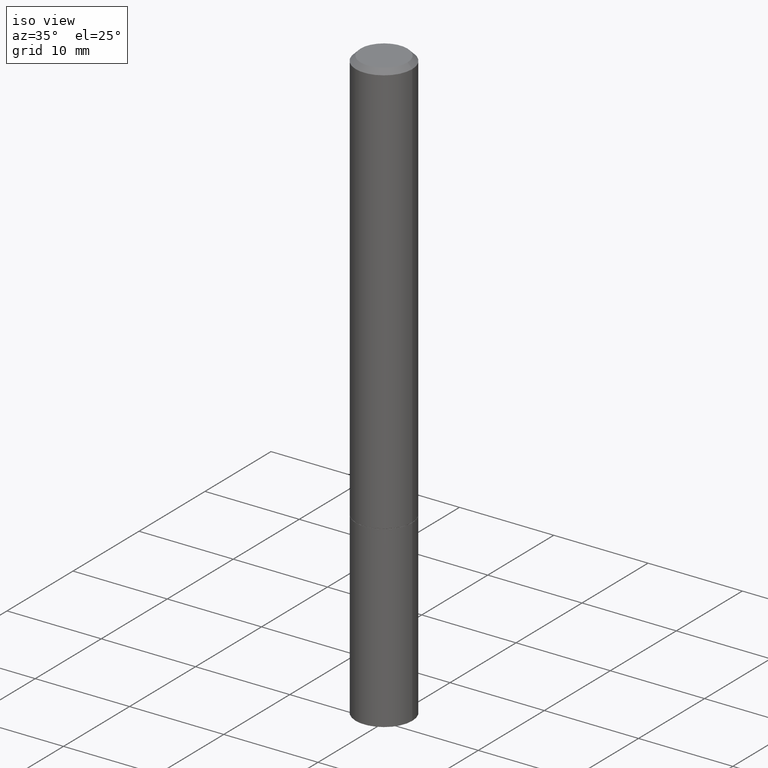
[diagram: clean part render]
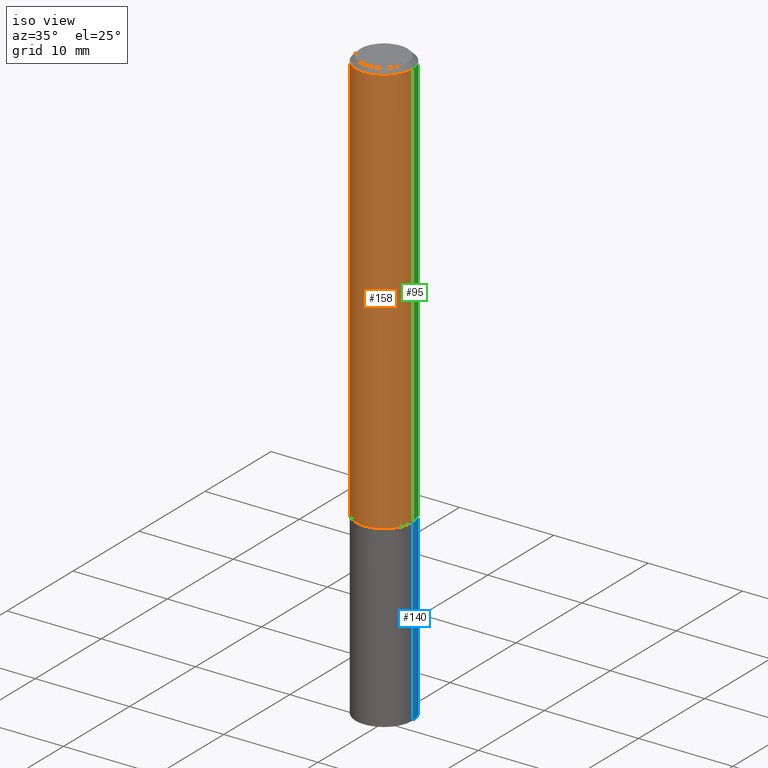
[diagram: same view with three faces highlighted in distinct colors, each labeled with its STEP entity id]
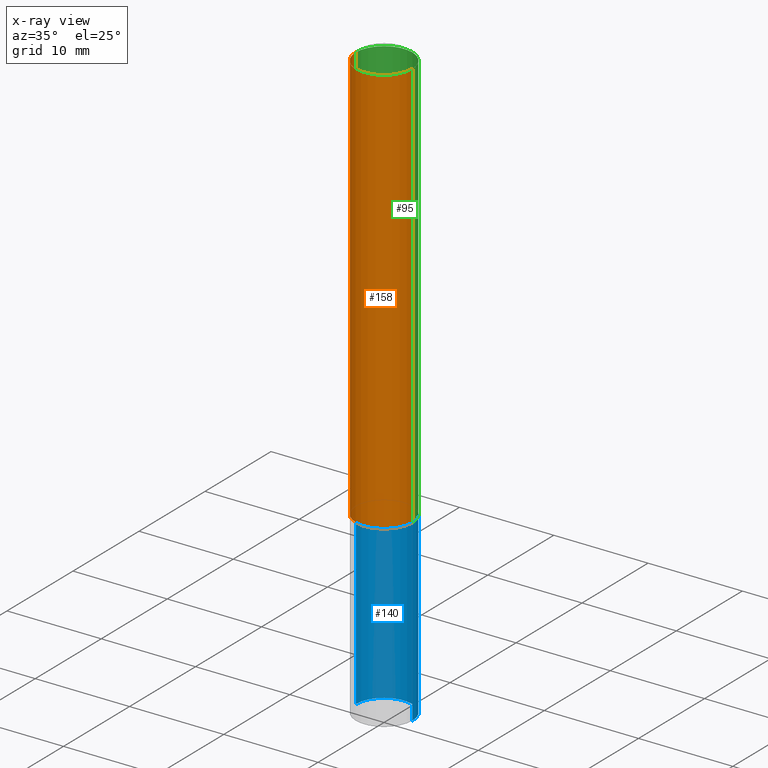
[diagram: x-ray of the same camera — body ghosted, the three highlighted faces saturated]
A machine part, iso view with three faces highlighted in distinct colors.
The next image is the same camera in x-ray (body ghosted, the three faces saturated) — at least one of them is partly hidden behind the body in this view.
Their STEP definitions:

[orange] entity #158 — the highlighted cylindrical surface (edge-blend (fillet) strip) has radius 2.9997 mm, axis along (-0, 0, 1).
#9 = CARTESIAN_POINT ( 'NONE',  ( 4.890937612370304688E-31, -6.982962677686337215E-17, -0.02000000000000013226 ) ) ;
#15 = CARTESIAN_POINT ( 'NONE',  ( -0.1181000000000000383, -2.218164663425320121E-15, -1.731300000000000283 ) ) ;
#22 = VERTEX_POINT ( 'NONE', #243 ) ;
#26 = EDGE_CURVE ( 'NONE', #22, #196, #123, .T. ) ;
#35 = DIRECTION ( 'NONE',  ( -2.445468806185136877E-29, 3.491481338843145188E-15, 1.000000000000000000 ) ) ;
#48 = DIRECTION ( 'NONE',  ( 1.000000000000000000, -6.982962677686262766E-15, 0.000000000000000000 ) ) ;
#60 = DIRECTION ( 'NONE',  ( 1.000000000000000000, -6.982962677686266711E-15, 0.000000000000000000 ) ) ;
#73 = VERTEX_POINT ( 'NONE', #319 ) ;
#108 = CARTESIAN_POINT ( 'NONE',  ( 0.000000000000000000, 0.000000000000000000, 0.000000000000000000 ) ) ;
#111 = EDGE_LOOP ( 'NONE', ( #343, #250, #144, #170 ) ) ;
#123 = CIRCLE ( 'NONE', #225, 0.1180999999999998301 ) ;
#137 = EDGE_CURVE ( 'NONE', #204, #73, #235, .T. ) ;
#142 = VECTOR ( 'NONE', #35, 39.37007874015748143 ) ;
#144 = ORIENTED_EDGE ( 'NONE', *, *, #248, .T. ) ;
#158 = ADVANCED_FACE ( 'NONE', ( #283 ), #276, .T. ) ;
#170 = ORIENTED_EDGE ( 'NONE', *, *, #26, .F. ) ;
#196 = VERTEX_POINT ( 'NONE', #335 ) ;
#204 = VERTEX_POINT ( 'NONE', #15 ) ;
#205 = DIRECTION ( 'NONE',  ( -2.445468806185136597E-29, 3.491481338843145583E-15, 1.000000000000000000 ) ) ;
#220 = VECTOR ( 'NONE', #329, 39.37007874015748143 ) ;
#225 = AXIS2_PLACEMENT_3D ( 'NONE', #9, #205, #60 ) ;
#235 = CIRCLE ( 'NONE', #309, 0.1181000000000000383 ) ;
#243 = CARTESIAN_POINT ( 'NONE',  ( -0.1180999999999998301, 7.548582654578835839E-16, -0.02000000000000013226 ) ) ;
#248 = EDGE_CURVE ( 'NONE', #73, #196, #263, .T. ) ;
#250 = ORIENTED_EDGE ( 'NONE', *, *, #137, .T. ) ;
#259 = LINE ( 'NONE', #337, #220 ) ;
#263 = LINE ( 'NONE', #338, #142 ) ;
#276 = CYLINDRICAL_SURFACE ( 'NONE', #340, 0.1180999999999999273 ) ;
#283 = FACE_OUTER_BOUND ( 'NONE', #111, .T. ) ;
#288 = DIRECTION ( 'NONE',  ( 1.000000000000000000, -6.982962677686266711E-15, 4.876176775795935793E-29 ) ) ;
#291 = DIRECTION ( 'NONE',  ( -2.445468806185136597E-29, 3.491481338843145583E-15, 1.000000000000000000 ) ) ;
#292 = EDGE_CURVE ( 'NONE', #204, #22, #259, .T. ) ;
#308 = DIRECTION ( 'NONE',  ( -2.445468806185136597E-29, 3.491481338843145583E-15, 1.000000000000000000 ) ) ;
#309 = AXIS2_PLACEMENT_3D ( 'NONE', #359, #291, #48 ) ;
#319 = CARTESIAN_POINT ( 'NONE',  ( 0.1181000000000000383, -6.869489534173886334E-15, -1.731300000000000283 ) ) ;
#329 = DIRECTION ( 'NONE',  ( -2.445468806185136877E-29, 3.491481338843145188E-15, 1.000000000000000000 ) ) ;
#335 = CARTESIAN_POINT ( 'NONE',  ( 0.1180999999999998301, -8.800544403136799500E-16, -0.02000000000000013226 ) ) ;
#337 = CARTESIAN_POINT ( 'NONE',  ( -0.1180999999999999273, 8.391509709326778027E-16, -5.809262341591040281E-30 ) ) ;
#338 = CARTESIAN_POINT ( 'NONE',  ( 0.1180999999999999273, -8.246878922347475723E-16, 5.758764772214996937E-30 ) ) ;
#340 = AXIS2_PLACEMENT_3D ( 'NONE', #108, #308, #288 ) ;
#343 = ORIENTED_EDGE ( 'NONE', *, *, #292, .F. ) ;
#359 = CARTESIAN_POINT ( 'NONE',  ( 4.233840144148327350E-29, -6.044801641939138860E-15, -1.731300000000000283 ) ) ;

[blue] entity #140 — the highlighted cylindrical surface (edge-blend (fillet) strip) has radius 2.9997 mm, axis along (-0, 0, 1).
#6 = CARTESIAN_POINT ( 'NONE',  ( 0.1181000000000000383, -9.484609056967403598E-15, -2.480300000000000171 ) ) ;
#24 = DIRECTION ( 'NONE',  ( -2.445468806185136597E-29, 3.491481338843145583E-15, 1.000000000000000000 ) ) ;
#41 = CARTESIAN_POINT ( 'NONE',  ( -0.1181000000000000383, -6.514956173072641193E-15, -1.732300000000000617 ) ) ;
#42 = EDGE_CURVE ( 'NONE', #296, #311, #321, .T. ) ;
#67 = EDGE_CURVE ( 'NONE', #311, #353, #345, .T. ) ;
#70 = CARTESIAN_POINT ( 'NONE',  ( 0.1181000000000000383, -6.872981015512730918E-15, -1.732300000000000617 ) ) ;
#81 = CARTESIAN_POINT ( 'NONE',  ( 4.236285612954513513E-29, -6.048293123277983445E-15, -1.732300000000000617 ) ) ;
#98 = CARTESIAN_POINT ( 'NONE',  ( -0.1181000000000000383, -6.514956173072641193E-15, -2.480300000000000171 ) ) ;
#117 = CARTESIAN_POINT ( 'NONE',  ( 0.000000000000000000, 0.000000000000000000, 0.000000000000000000 ) ) ;
#124 = AXIS2_PLACEMENT_3D ( 'NONE', #125, #217, #342 ) ;
#125 = CARTESIAN_POINT ( 'NONE',  ( 6.065496279980994755E-29, -8.659921164732655335E-15, -2.480300000000000171 ) ) ;
#131 = DIRECTION ( 'NONE',  ( 1.000000000000000000, -6.982962677686262766E-15, 0.000000000000000000 ) ) ;
#134 = AXIS2_PLACEMENT_3D ( 'NONE', #81, #24, #131 ) ;
#140 = ADVANCED_FACE ( 'NONE', ( #231 ), #202, .T. ) ;
#143 = EDGE_LOOP ( 'NONE', ( #298, #265, #347, #162 ) ) ;
#159 = DIRECTION ( 'NONE',  ( -2.445468806185136877E-29, 3.491481338843145188E-15, 1.000000000000000000 ) ) ;
#161 = LINE ( 'NONE', #287, #356 ) ;
#162 = ORIENTED_EDGE ( 'NONE', *, *, #42, .F. ) ;
#175 = AXIS2_PLACEMENT_3D ( 'NONE', #117, #241, #180 ) ;
#180 = DIRECTION ( 'NONE',  ( 1.000000000000000000, -6.982962677686266711E-15, 4.876176775795935793E-29 ) ) ;
#197 = VECTOR ( 'NONE', #209, 39.37007874015748143 ) ;
#202 = CYLINDRICAL_SURFACE ( 'NONE', #175, 0.1181000000000000383 ) ;
#209 = DIRECTION ( 'NONE',  ( -2.445468806185136877E-29, 3.491481338843145188E-15, 1.000000000000000000 ) ) ;
#210 = EDGE_CURVE ( 'NONE', #296, #307, #269, .T. ) ;
#212 = CARTESIAN_POINT ( 'NONE',  ( 0.1181000000000000383, -8.246878922347483612E-16, 5.758764772215001842E-30 ) ) ;
#217 = DIRECTION ( 'NONE',  ( -2.445468806185136597E-29, 3.491481338843145583E-15, 1.000000000000000000 ) ) ;
#231 = FACE_OUTER_BOUND ( 'NONE', #143, .T. ) ;
#241 = DIRECTION ( 'NONE',  ( -2.445468806185136597E-29, 3.491481338843145583E-15, 1.000000000000000000 ) ) ;
#265 = ORIENTED_EDGE ( 'NONE', *, *, #317, .T. ) ;
#269 = CIRCLE ( 'NONE', #124, 0.1181000000000000383 ) ;
#287 = CARTESIAN_POINT ( 'NONE',  ( -0.1181000000000000383, 8.391509709326785915E-16, -5.809262341591045886E-30 ) ) ;
#296 = VERTEX_POINT ( 'NONE', #6 ) ;
#298 = ORIENTED_EDGE ( 'NONE', *, *, #210, .T. ) ;
#307 = VERTEX_POINT ( 'NONE', #98 ) ;
#311 = VERTEX_POINT ( 'NONE', #70 ) ;
#317 = EDGE_CURVE ( 'NONE', #307, #353, #161, .T. ) ;
#321 = LINE ( 'NONE', #212, #197 ) ;
#342 = DIRECTION ( 'NONE',  ( 1.000000000000000000, -6.982962677686270655E-15, 0.000000000000000000 ) ) ;
#345 = CIRCLE ( 'NONE', #134, 0.1181000000000000383 ) ;
#347 = ORIENTED_EDGE ( 'NONE', *, *, #67, .F. ) ;
#353 = VERTEX_POINT ( 'NONE', #41 ) ;
#356 = VECTOR ( 'NONE', #159, 39.37007874015748143 ) ;

[green] entity #95 — the highlighted cylindrical surface (edge-blend (fillet) strip) has radius 2.9997 mm, axis along (-0, 0, 1).
#7 = EDGE_CURVE ( 'NONE', #196, #22, #40, .T. ) ;
#15 = CARTESIAN_POINT ( 'NONE',  ( -0.1181000000000000383, -2.218164663425320121E-15, -1.731300000000000283 ) ) ;
#22 = VERTEX_POINT ( 'NONE', #243 ) ;
#27 = EDGE_LOOP ( 'NONE', ( #300, #66, #256, #366 ) ) ;
#28 = DIRECTION ( 'NONE',  ( 1.000000000000000000, -6.982962677686266711E-15, 0.000000000000000000 ) ) ;
#35 = DIRECTION ( 'NONE',  ( -2.445468806185136877E-29, 3.491481338843145188E-15, 1.000000000000000000 ) ) ;
#40 = CIRCLE ( 'NONE', #157, 0.1180999999999998301 ) ;
#44 = AXIS2_PLACEMENT_3D ( 'NONE', #74, #233, #79 ) ;
#54 = EDGE_CURVE ( 'NONE', #73, #204, #214, .T. ) ;
#66 = ORIENTED_EDGE ( 'NONE', *, *, #292, .T. ) ;
#73 = VERTEX_POINT ( 'NONE', #319 ) ;
#74 = CARTESIAN_POINT ( 'NONE',  ( 0.000000000000000000, 0.000000000000000000, 0.000000000000000000 ) ) ;
#79 = DIRECTION ( 'NONE',  ( 1.000000000000000000, -6.982962677686266711E-15, 4.876176775795935793E-29 ) ) ;
#95 = ADVANCED_FACE ( 'NONE', ( #107 ), #189, .T. ) ;
#104 = DIRECTION ( 'NONE',  ( -2.445468806185136597E-29, 3.491481338843145583E-15, 1.000000000000000000 ) ) ;
#107 = FACE_OUTER_BOUND ( 'NONE', #27, .T. ) ;
#126 = AXIS2_PLACEMENT_3D ( 'NONE', #139, #174, #240 ) ;
#139 = CARTESIAN_POINT ( 'NONE',  ( 4.233840144148327350E-29, -6.044801641939138860E-15, -1.731300000000000283 ) ) ;
#142 = VECTOR ( 'NONE', #35, 39.37007874015748143 ) ;
#157 = AXIS2_PLACEMENT_3D ( 'NONE', #289, #104, #28 ) ;
#174 = DIRECTION ( 'NONE',  ( -2.445468806185136597E-29, 3.491481338843145583E-15, 1.000000000000000000 ) ) ;
#189 = CYLINDRICAL_SURFACE ( 'NONE', #44, 0.1180999999999999273 ) ;
#196 = VERTEX_POINT ( 'NONE', #335 ) ;
#204 = VERTEX_POINT ( 'NONE', #15 ) ;
#214 = CIRCLE ( 'NONE', #126, 0.1181000000000000383 ) ;
#220 = VECTOR ( 'NONE', #329, 39.37007874015748143 ) ;
#233 = DIRECTION ( 'NONE',  ( -2.445468806185136597E-29, 3.491481338843145583E-15, 1.000000000000000000 ) ) ;
#240 = DIRECTION ( 'NONE',  ( 1.000000000000000000, -6.982962677686262766E-15, 0.000000000000000000 ) ) ;
#243 = CARTESIAN_POINT ( 'NONE',  ( -0.1180999999999998301, 7.548582654578835839E-16, -0.02000000000000013226 ) ) ;
#248 = EDGE_CURVE ( 'NONE', #73, #196, #263, .T. ) ;
#256 = ORIENTED_EDGE ( 'NONE', *, *, #7, .F. ) ;
#259 = LINE ( 'NONE', #337, #220 ) ;
#263 = LINE ( 'NONE', #338, #142 ) ;
#289 = CARTESIAN_POINT ( 'NONE',  ( 4.890937612370304688E-31, -6.982962677686337215E-17, -0.02000000000000013226 ) ) ;
#292 = EDGE_CURVE ( 'NONE', #204, #22, #259, .T. ) ;
#300 = ORIENTED_EDGE ( 'NONE', *, *, #54, .T. ) ;
#319 = CARTESIAN_POINT ( 'NONE',  ( 0.1181000000000000383, -6.869489534173886334E-15, -1.731300000000000283 ) ) ;
#329 = DIRECTION ( 'NONE',  ( -2.445468806185136877E-29, 3.491481338843145188E-15, 1.000000000000000000 ) ) ;
#335 = CARTESIAN_POINT ( 'NONE',  ( 0.1180999999999998301, -8.800544403136799500E-16, -0.02000000000000013226 ) ) ;
#337 = CARTESIAN_POINT ( 'NONE',  ( -0.1180999999999999273, 8.391509709326778027E-16, -5.809262341591040281E-30 ) ) ;
#338 = CARTESIAN_POINT ( 'NONE',  ( 0.1180999999999999273, -8.246878922347475723E-16, 5.758764772214996937E-30 ) ) ;
#366 = ORIENTED_EDGE ( 'NONE', *, *, #248, .F. ) ;